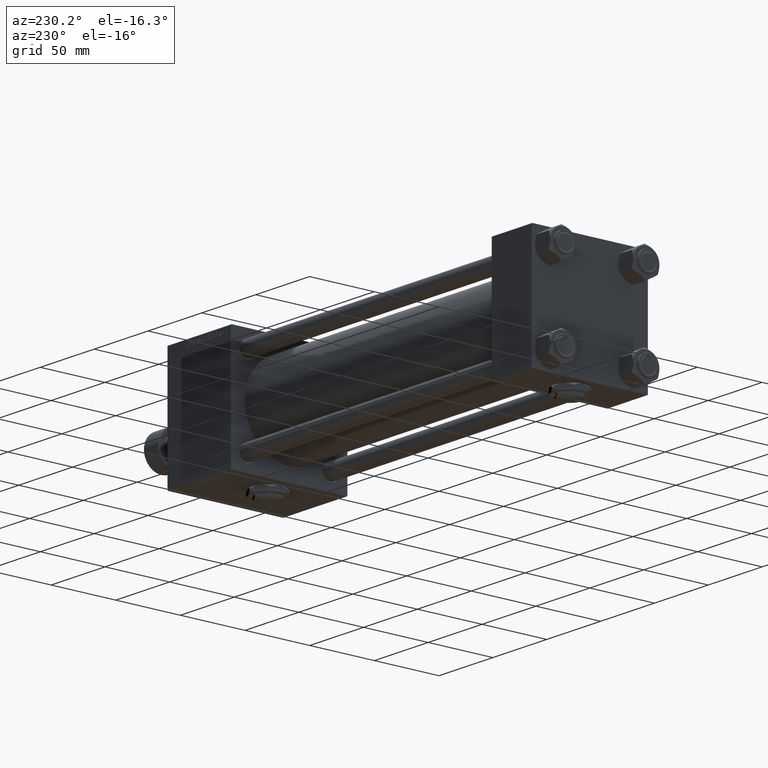
[diagram: clean part render]
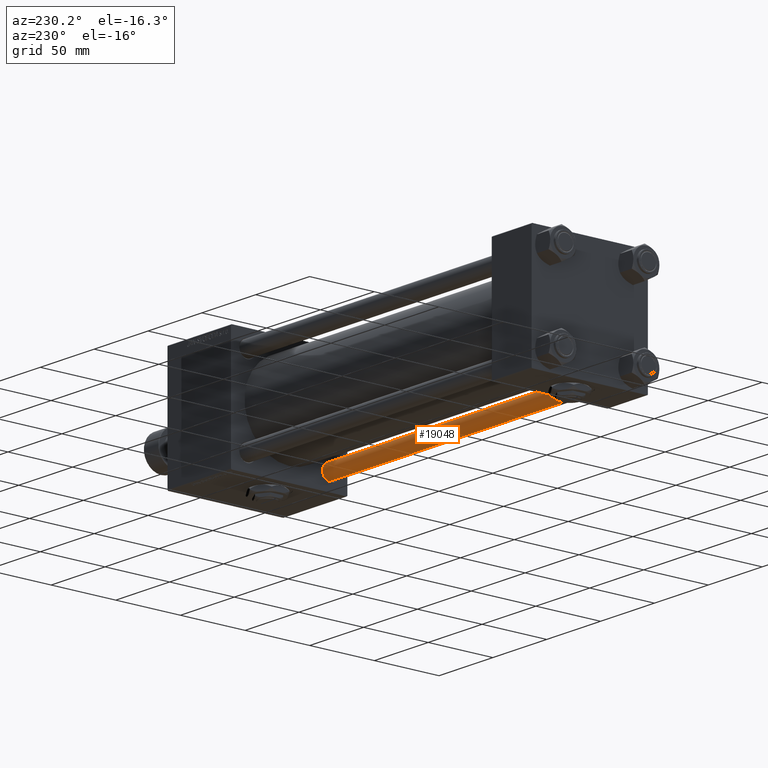
[diagram: same view with one face highlighted and labeled with its STEP entity id]
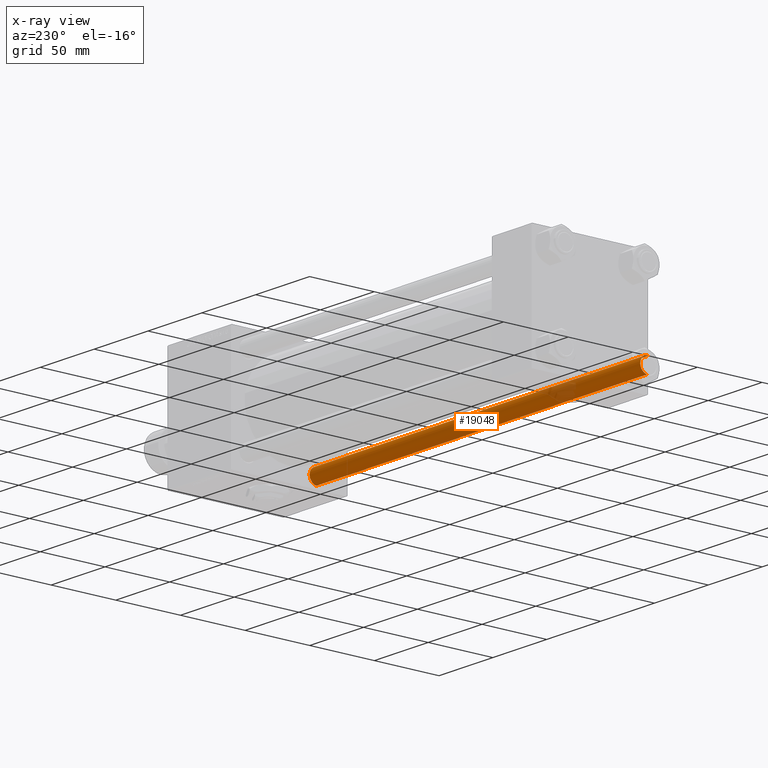
[diagram: x-ray of the same camera — body ghosted, the highlighted face saturated]
A machine part, auxiliary view. The second image highlights one B-rep face of the part: STEP entity #19048.
The next image is the same camera in x-ray: the body ghosted, the highlighted face saturated — about 7% of this face is hidden behind the body in this view.
In plain terms, the highlighted cylindrical surface (edge-blend (fillet) strip) has radius 6 mm, axis along (-1, -0, -0).
Its self-contained STEP definition (entity closure, byte-faithful):
#1504 = CYLINDRICAL_SURFACE ( 'NONE', #26784, 6.000000000000000888 ) ;
#3782 = ORIENTED_EDGE ( 'NONE', *, *, #51819, .T. ) ;
#3868 = VECTOR ( 'NONE', #44496, 1000.000000000000000 ) ;
#4203 = CARTESIAN_POINT ( 'NONE',  ( 6.000000000000000888, 7.347880794884120722E-16, 307.4999999999999432 ) ) ;
#7028 = AXIS2_PLACEMENT_3D ( 'NONE', #31272, #14443, #26742 ) ;
#8227 = CARTESIAN_POINT ( 'NONE',  ( 6.000000000000000888, 7.347880794884120722E-16, 308.0000000000000000 ) ) ;
#9786 = CARTESIAN_POINT ( 'NONE',  ( 0.000000000000000000, 0.000000000000000000, 308.0000000000000000 ) ) ;
#10035 = DIRECTION ( 'NONE',  ( -0.000000000000000000, -0.000000000000000000, -1.000000000000000000 ) ) ;
#13305 = CARTESIAN_POINT ( 'NONE',  ( -6.000000000000000888, 0.000000000000000000, 307.4999999999999432 ) ) ;
#14443 = DIRECTION ( 'NONE',  ( -0.000000000000000000, -0.000000000000000000, 1.000000000000000000 ) ) ;
#19048 = ADVANCED_FACE ( 'NONE', ( #22611 ), #1504, .T. ) ;
#19233 = DIRECTION ( 'NONE',  ( 1.000000000000000000, 0.000000000000000000, 0.000000000000000000 ) ) ;
#19973 = CARTESIAN_POINT ( 'NONE',  ( -6.000000000000000888, 0.000000000000000000, 308.0000000000000000 ) ) ;
#20227 = LINE ( 'NONE', #19973, #3868 ) ;
#22042 = EDGE_CURVE ( 'NONE', #28727, #42847, #20227, .T. ) ;
#22090 = DIRECTION ( 'NONE',  ( -0.000000000000000000, -0.000000000000000000, -1.000000000000000000 ) ) ;
#22611 = FACE_OUTER_BOUND ( 'NONE', #46758, .T. ) ;
#23231 = CARTESIAN_POINT ( 'NONE',  ( 0.000000000000000000, 0.000000000000000000, 307.4999999999999432 ) ) ;
#26086 = DIRECTION ( 'NONE',  ( -1.000000000000000000, 0.000000000000000000, 0.000000000000000000 ) ) ;
#26204 = EDGE_CURVE ( 'NONE', #34493, #43757, #32534, .T. ) ;
#26742 = DIRECTION ( 'NONE',  ( 1.000000000000000000, 0.000000000000000000, 0.000000000000000000 ) ) ;
#26784 = AXIS2_PLACEMENT_3D ( 'NONE', #9786, #10035, #26086 ) ;
#28727 = VERTEX_POINT ( 'NONE', #13305 ) ;
#29830 = ORIENTED_EDGE ( 'NONE', *, *, #22042, .T. ) ;
#30044 = CIRCLE ( 'NONE', #7028, 6.000000000000000888 ) ;
#31272 = CARTESIAN_POINT ( 'NONE',  ( 0.000000000000000000, 0.000000000000000000, 0.5000000000000559552 ) ) ;
#31654 = ORIENTED_EDGE ( 'NONE', *, *, #39407, .T. ) ;
#32534 = LINE ( 'NONE', #8227, #34765 ) ;
#34493 = VERTEX_POINT ( 'NONE', #4203 ) ;
#34765 = VECTOR ( 'NONE', #22090, 1000.000000000000000 ) ;
#39407 = EDGE_CURVE ( 'NONE', #42847, #43757, #30044, .T. ) ;
#39502 = DIRECTION ( 'NONE',  ( 0.000000000000000000, 0.000000000000000000, -1.000000000000000000 ) ) ;
#39704 = CARTESIAN_POINT ( 'NONE',  ( 6.000000000000000888, 7.347880794884120722E-16, 0.5000000000000559552 ) ) ;
#41291 = ORIENTED_EDGE ( 'NONE', *, *, #26204, .F. ) ;
#42847 = VERTEX_POINT ( 'NONE', #50938 ) ;
#43757 = VERTEX_POINT ( 'NONE', #39704 ) ;
#44301 = AXIS2_PLACEMENT_3D ( 'NONE', #23231, #39502, #19233 ) ;
#44496 = DIRECTION ( 'NONE',  ( -0.000000000000000000, -0.000000000000000000, -1.000000000000000000 ) ) ;
#46758 = EDGE_LOOP ( 'NONE', ( #41291, #3782, #29830, #31654 ) ) ;
#48550 = CIRCLE ( 'NONE', #44301, 6.000000000000000888 ) ;
#50938 = CARTESIAN_POINT ( 'NONE',  ( -6.000000000000000888, 0.000000000000000000, 0.5000000000000559552 ) ) ;
#51819 = EDGE_CURVE ( 'NONE', #34493, #28727, #48550, .T. ) ;